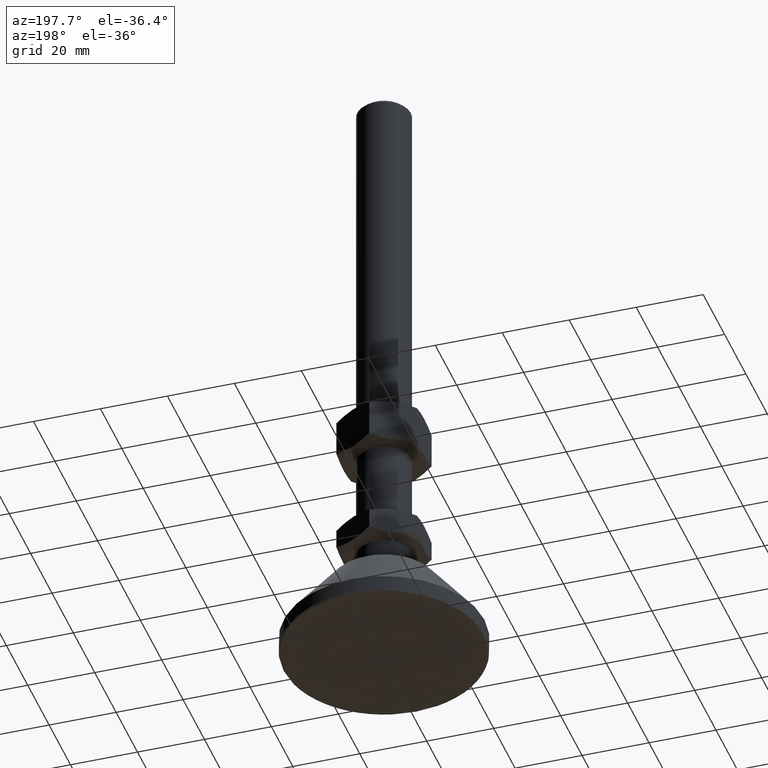
[diagram: clean part render]
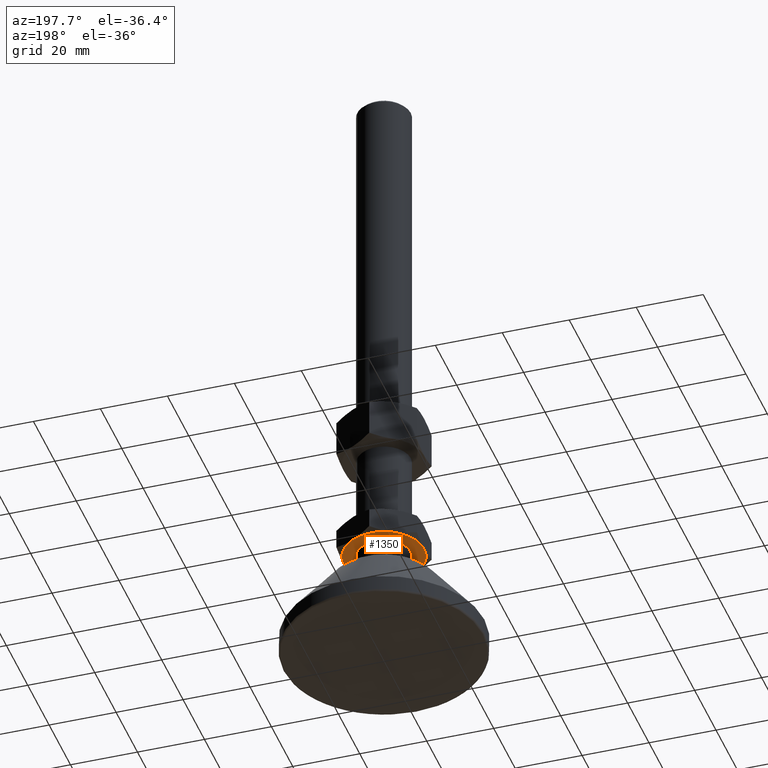
[diagram: same view with one face highlighted and labeled with its STEP entity id]
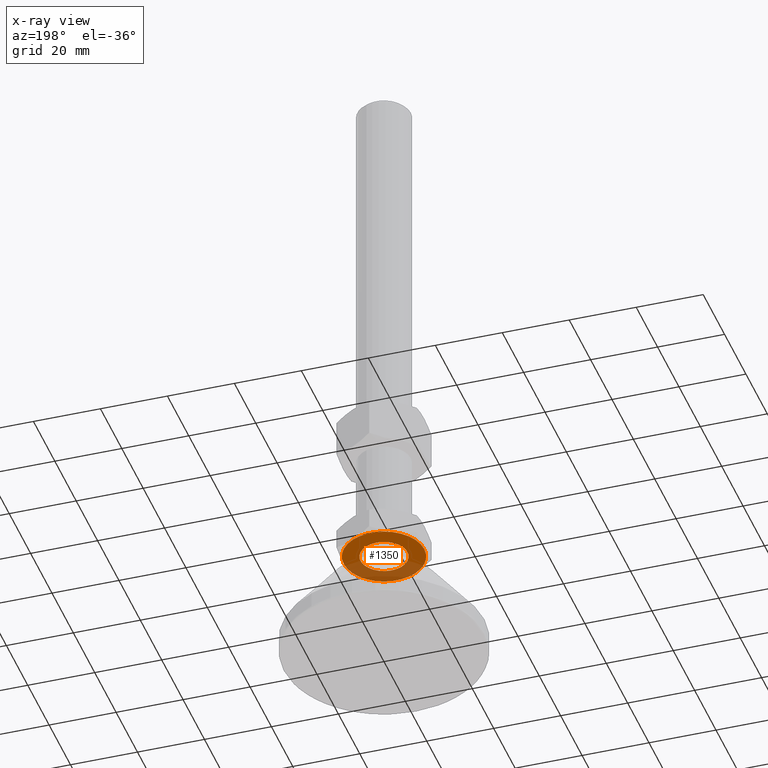
[diagram: x-ray of the same camera — body ghosted, the highlighted face saturated]
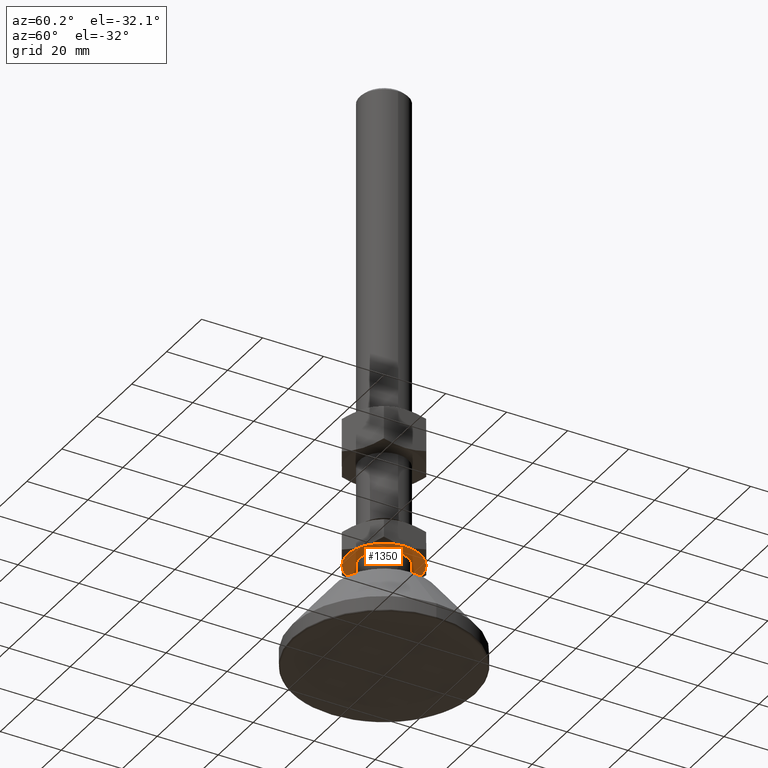
[diagram: same view with one face highlighted and labeled with its STEP entity id]
A machine part, auxiliary view. The second image highlights one B-rep face of the part: STEP entity #1350.
The next image is the same camera in x-ray: the body ghosted, the highlighted face saturated — about 39% of this face is hidden behind the body in this view.
A second angle (auxiliary view) of the same face is appended — the face is thin or edge-on in the first view.
In plain terms, the highlighted planar face has unit normal (0, 0, 1).
Its self-contained STEP definition (entity closure, byte-faithful):
#1269=CARTESIAN_POINT('',(24.000000000000114,-23.999999999999996,34.000000333786488));
#1270=DIRECTION('',(0.0,0.0,1.0));
#1271=DIRECTION('',(0.0,1.0,0.0));
#1272=AXIS2_PLACEMENT_3D('',#1269,#1270,#1271);
#1273=PLANE('',#1272);
#1274=CARTESIAN_POINT('',(6.000000000000114,10.392304845413264,34.000000333786488));
#1275=VERTEX_POINT('',#1274);
#1276=CARTESIAN_POINT('',(12.000000000000114,2.081900E-015,34.000000333786488));
#1277=VERTEX_POINT('',#1276);
#1278=CARTESIAN_POINT('',(1.136868E-013,2.081900E-015,34.000000333786488));
#1279=DIRECTION('',(0.0,-6.123234E-017,-1.0));
#1280=DIRECTION('',(-1.0,2.144190E-017,-1.312938E-033));
#1281=AXIS2_PLACEMENT_3D('',#1278,#1279,#1280);
#1282=CIRCLE('',#1281,12.0);
#1283=EDGE_CURVE('',#1275,#1277,#1282,.T.);
#1284=ORIENTED_EDGE('',*,*,#1283,.T.);
#1285=CARTESIAN_POINT('',(6.000000000000114,-10.392304845413266,34.000000333786488));
#1286=VERTEX_POINT('',#1285);
#1287=CARTESIAN_POINT('',(1.136868E-013,2.081900E-015,34.000000333786488));
#1288=DIRECTION('',(0.0,-6.123234E-017,-1.0));
#1289=DIRECTION('',(-1.0,2.144190E-017,-1.312938E-033));
#1290=AXIS2_PLACEMENT_3D('',#1287,#1288,#1289);
#1291=CIRCLE('',#1290,12.0);
#1292=EDGE_CURVE('',#1277,#1286,#1291,.T.);
#1293=ORIENTED_EDGE('',*,*,#1292,.T.);
#1294=CARTESIAN_POINT('',(-5.999999999999886,-10.392304845413253,34.000000333786488));
#1295=VERTEX_POINT('',#1294);
#1296=CARTESIAN_POINT('',(1.136868E-013,2.081900E-015,34.000000333786488));
#1297=DIRECTION('',(0.0,-6.123234E-017,-1.0));
#1298=DIRECTION('',(-1.0,2.144190E-017,-1.312938E-033));
#1299=AXIS2_PLACEMENT_3D('',#1296,#1297,#1298);
#1300=CIRCLE('',#1299,12.0);
#1301=EDGE_CURVE('',#1286,#1295,#1300,.T.);
#1302=ORIENTED_EDGE('',*,*,#1301,.T.);
#1303=CARTESIAN_POINT('',(-11.999999999999886,2.339202E-015,34.000000333786488));
#1304=VERTEX_POINT('',#1303);
#1305=CARTESIAN_POINT('',(1.136868E-013,2.081900E-015,34.000000333786488));
#1306=DIRECTION('',(0.0,-6.123234E-017,-1.0));
#1307=DIRECTION('',(-1.0,2.144190E-017,-1.312938E-033));
#1308=AXIS2_PLACEMENT_3D('',#1305,#1306,#1307);
#1309=CIRCLE('',#1308,12.0);
#1310=EDGE_CURVE('',#1295,#1304,#1309,.T.);
#1311=ORIENTED_EDGE('',*,*,#1310,.T.);
#1312=CARTESIAN_POINT('',(-5.999999999999886,10.392304845413246,34.000000333786488));
#1313=VERTEX_POINT('',#1312);
#1314=CARTESIAN_POINT('',(1.136868E-013,2.081900E-015,34.000000333786488));
#1315=DIRECTION('',(0.0,-6.123234E-017,-1.0));
#1316=DIRECTION('',(-1.0,2.144190E-017,-1.312938E-033));
#1317=AXIS2_PLACEMENT_3D('',#1314,#1315,#1316);
#1318=CIRCLE('',#1317,12.0);
#1319=EDGE_CURVE('',#1304,#1313,#1318,.T.);
#1320=ORIENTED_EDGE('',*,*,#1319,.T.);
#1321=CARTESIAN_POINT('',(1.136868E-013,2.081900E-015,34.000000333786488));
#1322=DIRECTION('',(0.0,-6.123234E-017,-1.0));
#1323=DIRECTION('',(-1.0,2.144190E-017,-1.312938E-033));
#1324=AXIS2_PLACEMENT_3D('',#1321,#1322,#1323);
#1325=CIRCLE('',#1324,12.0);
#1326=EDGE_CURVE('',#1313,#1275,#1325,.T.);
#1327=ORIENTED_EDGE('',*,*,#1326,.T.);
#1328=EDGE_LOOP('',(#1284,#1293,#1302,#1311,#1320,#1327));
#1329=FACE_OUTER_BOUND('',#1328,.T.);
#1330=CARTESIAN_POINT('',(1.136868E-013,7.000000000000002,34.000000333786488));
#1331=VERTEX_POINT('',#1330);
#1332=CARTESIAN_POINT('',(1.136868E-013,-6.999999999999998,34.000000333786488));
#1333=VERTEX_POINT('',#1332);
#1334=CARTESIAN_POINT('',(1.136868E-013,2.081900E-015,34.000000333786488));
#1335=DIRECTION('',(0.0,6.123234E-017,1.0));
#1336=DIRECTION('',(0.0,1.0,-6.123234E-017));
#1337=AXIS2_PLACEMENT_3D('',#1334,#1335,#1336);
#1338=CIRCLE('',#1337,7.0);
#1339=EDGE_CURVE('',#1331,#1333,#1338,.T.);
#1340=ORIENTED_EDGE('',*,*,#1339,.T.);
#1341=CARTESIAN_POINT('',(1.136868E-013,2.081900E-015,34.000000333786488));
#1342=DIRECTION('',(0.0,6.123234E-017,1.0));
#1343=DIRECTION('',(0.0,1.0,-6.123234E-017));
#1344=AXIS2_PLACEMENT_3D('',#1341,#1342,#1343);
#1345=CIRCLE('',#1344,7.0);
#1346=EDGE_CURVE('',#1333,#1331,#1345,.T.);
#1347=ORIENTED_EDGE('',*,*,#1346,.T.);
#1348=EDGE_LOOP('',(#1340,#1347));
#1349=FACE_BOUND('',#1348,.T.);
#1350=ADVANCED_FACE('',(#1329,#1349),#1273,.F.);